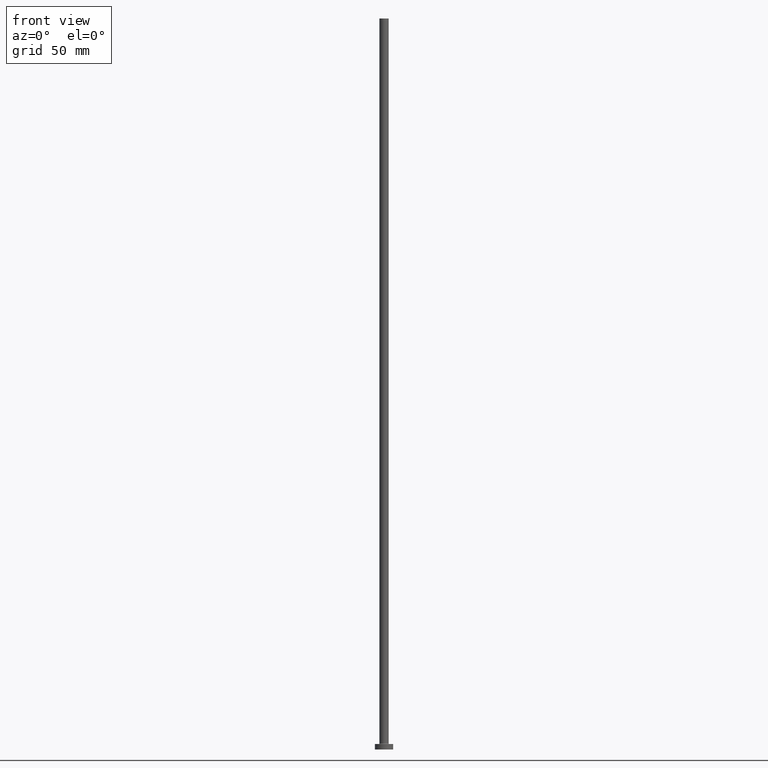
[diagram: clean part render]
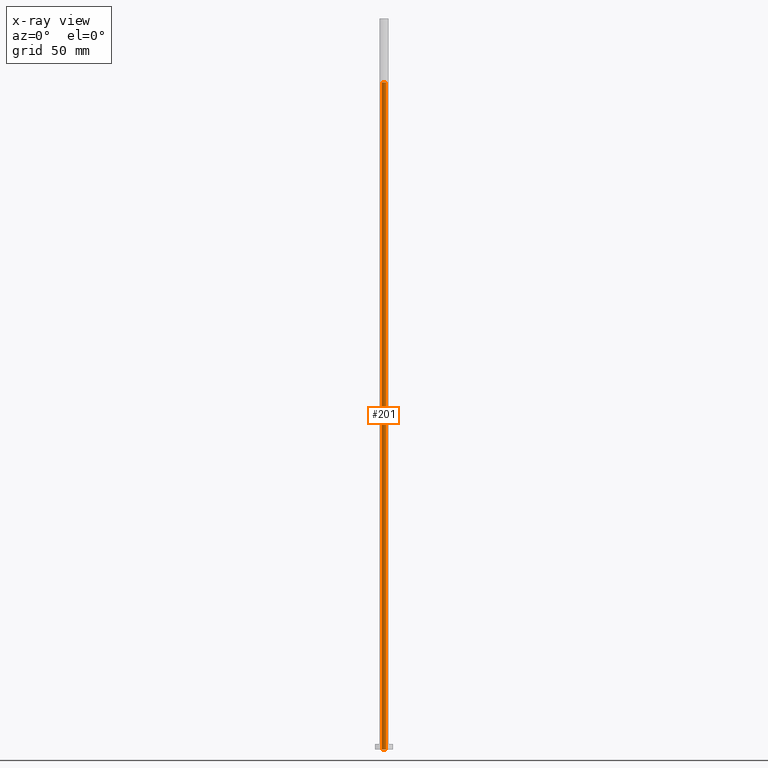
[diagram: x-ray — body ghosted, one internal face saturated and labeled with its STEP entity id]
A machine part, front view, then the same camera in x-ray: the body is ghosted and one INTERNAL B-rep face — a face not visible from any outside direction — is saturated and labeled: STEP entity #201.
In plain terms, the highlighted cylindrical surface (edge-blend (fillet) strip) has radius 1.15 mm, axis along (0, 0, -1).
Its self-contained STEP definition (entity closure, byte-faithful):
#3 = AXIS2_PLACEMENT_3D ( 'NONE', #206, #456, #197 ) ;
#8 = DIRECTION ( 'NONE',  ( 1.000000000000000000, 0.000000000000000000, 0.000000000000000000 ) ) ;
#28 = DIRECTION ( 'NONE',  ( -1.000000000000000000, 0.000000000000000000, 0.000000000000000000 ) ) ;
#31 = ORIENTED_EDGE ( 'NONE', *, *, #272, .F. ) ;
#45 = LINE ( 'NONE', #141, #373 ) ;
#64 = CARTESIAN_POINT ( 'NONE',  ( -1.149999999999999911, 0.000000000000000000, 365.0000000000000000 ) ) ;
#66 = DIRECTION ( 'NONE',  ( 0.000000000000000000, 0.000000000000000000, -1.000000000000000000 ) ) ;
#67 = VERTEX_POINT ( 'NONE', #64 ) ;
#68 = EDGE_CURVE ( 'NONE', #67, #259, #143, .T. ) ;
#76 = CARTESIAN_POINT ( 'NONE',  ( 0.000000000000000000, 0.000000000000000000, 0.000000000000000000 ) ) ;
#77 = DIRECTION ( 'NONE',  ( 0.000000000000000000, 0.000000000000000000, -1.000000000000000000 ) ) ;
#78 = VERTEX_POINT ( 'NONE', #318 ) ;
#86 = ORIENTED_EDGE ( 'NONE', *, *, #330, .T. ) ;
#87 = CARTESIAN_POINT ( 'NONE',  ( 1.149999999999999911, 1.408343819019456028E-16, 365.0000000000000000 ) ) ;
#101 = EDGE_CURVE ( 'NONE', #259, #348, #300, .T. ) ;
#103 = ORIENTED_EDGE ( 'NONE', *, *, #101, .T. ) ;
#108 = CARTESIAN_POINT ( 'NONE',  ( 1.149999999999999911, 1.408343819019456028E-16, 0.000000000000000000 ) ) ;
#109 = ORIENTED_EDGE ( 'NONE', *, *, #68, .T. ) ;
#123 = VECTOR ( 'NONE', #407, 1000.000000000000000 ) ;
#141 = CARTESIAN_POINT ( 'NONE',  ( -1.149999999999999911, 0.000000000000000000, 368.2526911934581335 ) ) ;
#143 = CIRCLE ( 'NONE', #3, 1.149999999999999911 ) ;
#166 = AXIS2_PLACEMENT_3D ( 'NONE', #76, #260, #8 ) ;
#197 = DIRECTION ( 'NONE',  ( 1.000000000000000000, 0.000000000000000000, 0.000000000000000000 ) ) ;
#201 = ADVANCED_FACE ( 'NONE', ( #236 ), #349, .F. ) ;
#206 = CARTESIAN_POINT ( 'NONE',  ( 0.000000000000000000, 0.000000000000000000, 365.0000000000000000 ) ) ;
#223 = CARTESIAN_POINT ( 'NONE',  ( 1.149999999999999911, 1.408343819019456028E-16, 368.2526911934581335 ) ) ;
#236 = FACE_OUTER_BOUND ( 'NONE', #428, .T. ) ;
#259 = VERTEX_POINT ( 'NONE', #87 ) ;
#260 = DIRECTION ( 'NONE',  ( -0.000000000000000000, -0.000000000000000000, -1.000000000000000000 ) ) ;
#270 = CARTESIAN_POINT ( 'NONE',  ( 0.000000000000000000, 0.000000000000000000, 368.2526911934581335 ) ) ;
#272 = EDGE_CURVE ( 'NONE', #67, #78, #45, .T. ) ;
#300 = LINE ( 'NONE', #223, #123 ) ;
#318 = CARTESIAN_POINT ( 'NONE',  ( -1.149999999999999911, 0.000000000000000000, 0.000000000000000000 ) ) ;
#330 = EDGE_CURVE ( 'NONE', #348, #78, #424, .T. ) ;
#348 = VERTEX_POINT ( 'NONE', #108 ) ;
#349 = CYLINDRICAL_SURFACE ( 'NONE', #351, 1.149999999999999911 ) ;
#351 = AXIS2_PLACEMENT_3D ( 'NONE', #270, #66, #28 ) ;
#373 = VECTOR ( 'NONE', #77, 1000.000000000000000 ) ;
#407 = DIRECTION ( 'NONE',  ( 0.000000000000000000, 0.000000000000000000, -1.000000000000000000 ) ) ;
#424 = CIRCLE ( 'NONE', #166, 1.149999999999999911 ) ;
#428 = EDGE_LOOP ( 'NONE', ( #109, #103, #86, #31 ) ) ;
#456 = DIRECTION ( 'NONE',  ( 0.000000000000000000, 0.000000000000000000, 1.000000000000000000 ) ) ;